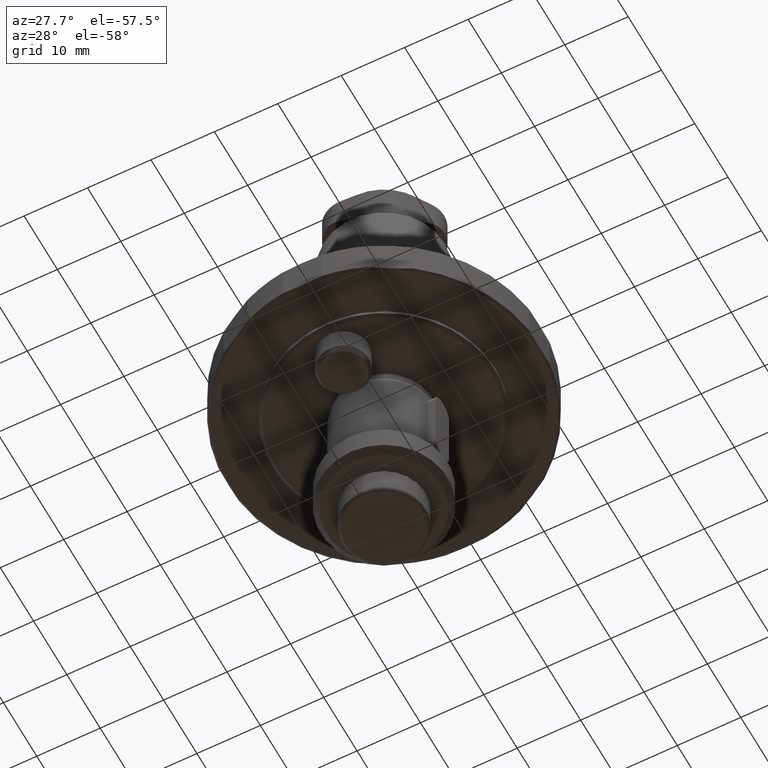
[diagram: clean part render]
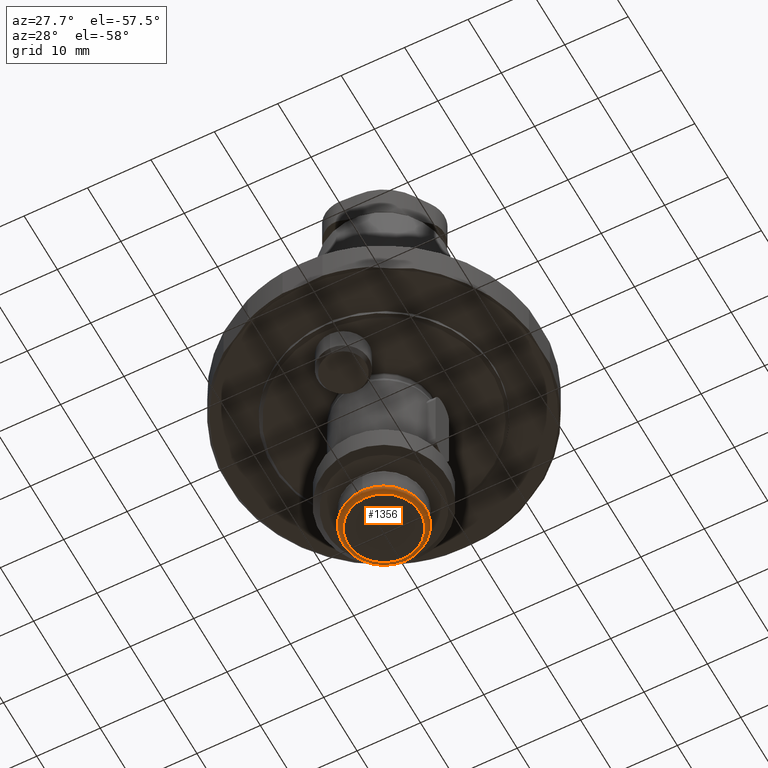
[diagram: same view with one face highlighted and labeled with its STEP entity id]
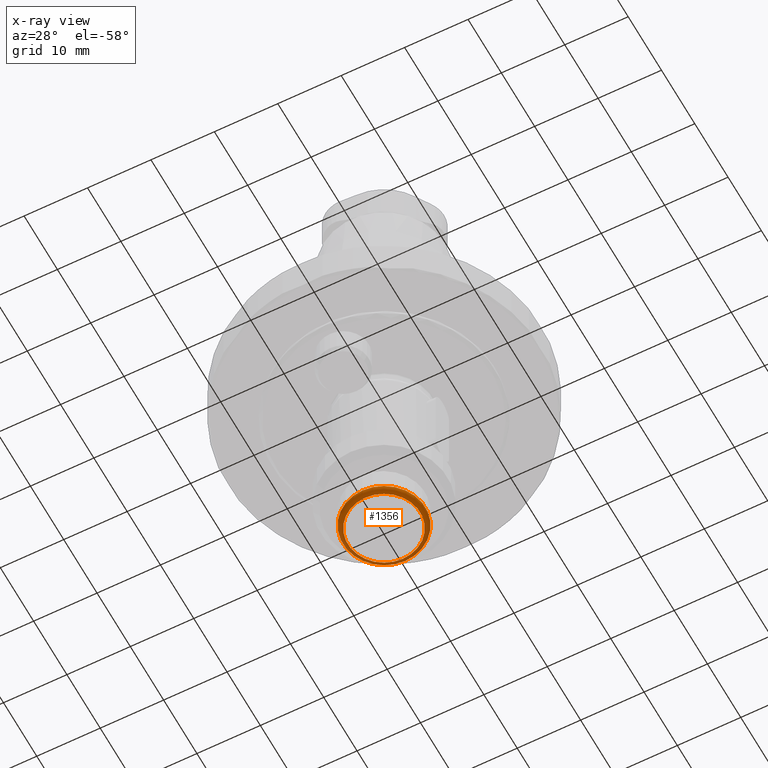
[diagram: x-ray of the same camera — body ghosted, the highlighted face saturated]
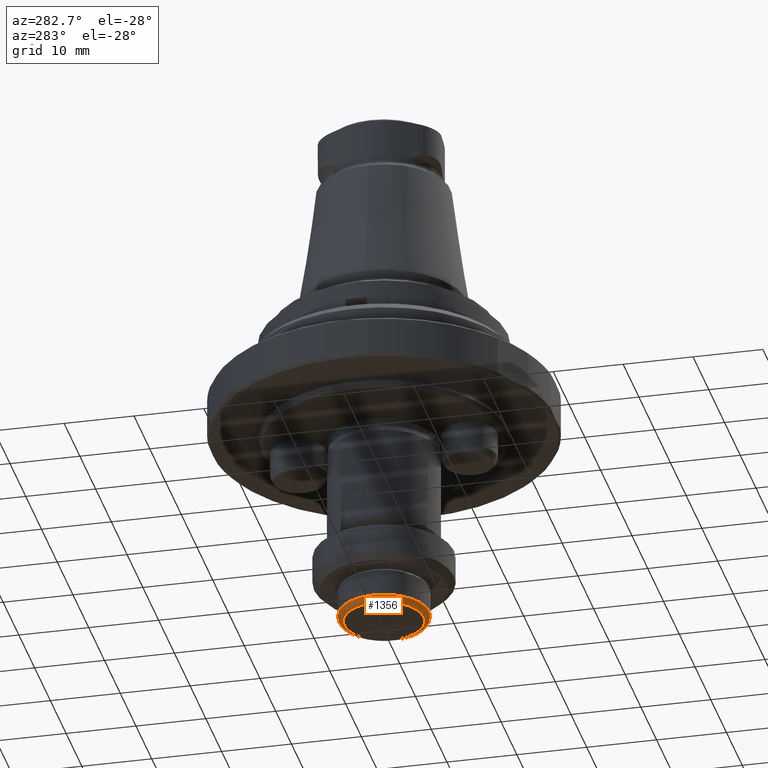
[diagram: same view with one face highlighted and labeled with its STEP entity id]
A machine part, auxiliary view. The second image highlights one B-rep face of the part: STEP entity #1356.
The next image is the same camera in x-ray: the body ghosted, the highlighted face saturated — about 0% of this face is hidden behind the body in this view.
A second angle (auxiliary view) of the same face is appended — the face is thin or edge-on in the first view.
In plain terms, the highlighted toroidal blend (fillet) surface has major radius 5.7 mm and minor (blend) radius 0.8 mm.
Its self-contained STEP definition (entity closure, byte-faithful):
#205=TOROIDAL_SURFACE('',#1492,5.69999999999987,0.80000000000013);
#307=ORIENTED_EDGE('',*,*,#636,.T.);
#308=ORIENTED_EDGE('',*,*,#637,.F.);
#636=EDGE_CURVE('',#813,#813,#940,.T.);
#637=EDGE_CURVE('',#814,#814,#941,.T.);
#813=VERTEX_POINT('',#2154);
#814=VERTEX_POINT('',#2157);
#940=CIRCLE('',#1491,6.5);
#941=CIRCLE('',#1493,5.7);
#1050=EDGE_LOOP('',(#307));
#1051=EDGE_LOOP('',(#308));
#1196=FACE_BOUND('',#1050,.T.);
#1197=FACE_BOUND('',#1051,.T.);
#1356=ADVANCED_FACE('',(#1196,#1197),#205,.T.);
#1491=AXIS2_PLACEMENT_3D('',#2153,#1736,#1737);
#1492=AXIS2_PLACEMENT_3D('',#2155,#1738,#1739);
#1493=AXIS2_PLACEMENT_3D('',#2156,#1740,#1741);
#1736=DIRECTION('',(-6.60287349634202E-17,-2.56856459952217E-17,-1.));
#1737=DIRECTION('',(-5.55111512312578E-17,-1.,-1.40847825098149E-16));
#1738=DIRECTION('',(-6.60287349634202E-17,-2.56856459952217E-17,-1.));
#1739=DIRECTION('',(-5.55111512312578E-17,-1.,-1.40847825098149E-16));
#1740=DIRECTION('',(-6.60287349634202E-17,-2.56856459952217E-17,-1.));
#1741=DIRECTION('',(-5.55111512312578E-17,-1.,-1.40847825098149E-16));
#2153=CARTESIAN_POINT('',(-2.6163833897209E-15,-2.61993589151258E-16,-35.1999999999999));
#2154=CARTESIAN_POINT('',(-2.97720587272408E-15,-6.5,-35.1999999999999));
#2155=CARTESIAN_POINT('',(-2.6163833897209E-15,-2.61993589151258E-16,-35.1999999999999));
#2156=CARTESIAN_POINT('',(-2.66920637769165E-15,-2.82542105947439E-16,-36.));
#2157=CARTESIAN_POINT('',(-2.98561993970982E-15,-5.7,-36.));